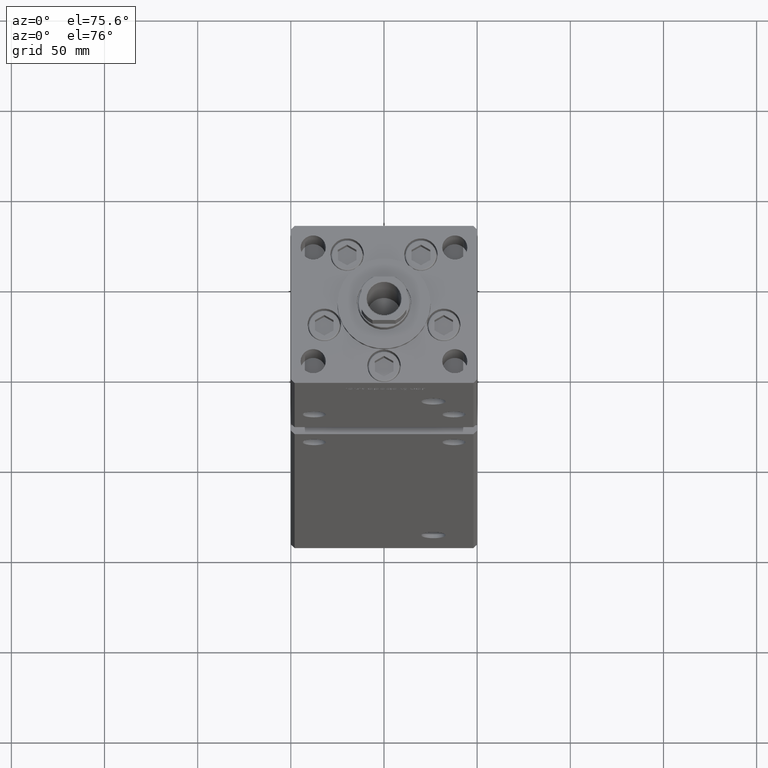
[diagram: clean part render]
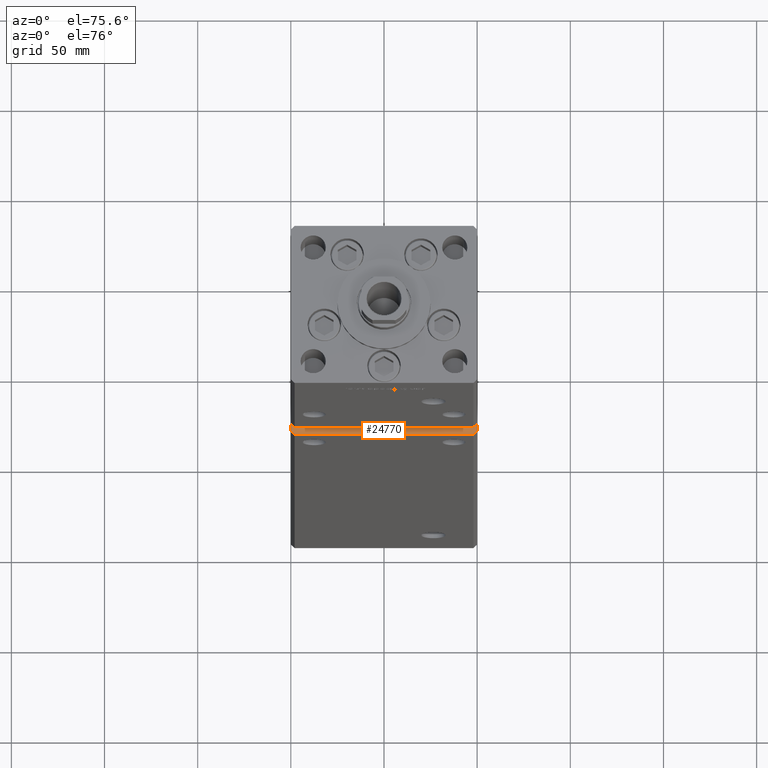
[diagram: same view with one face highlighted and labeled with its STEP entity id]
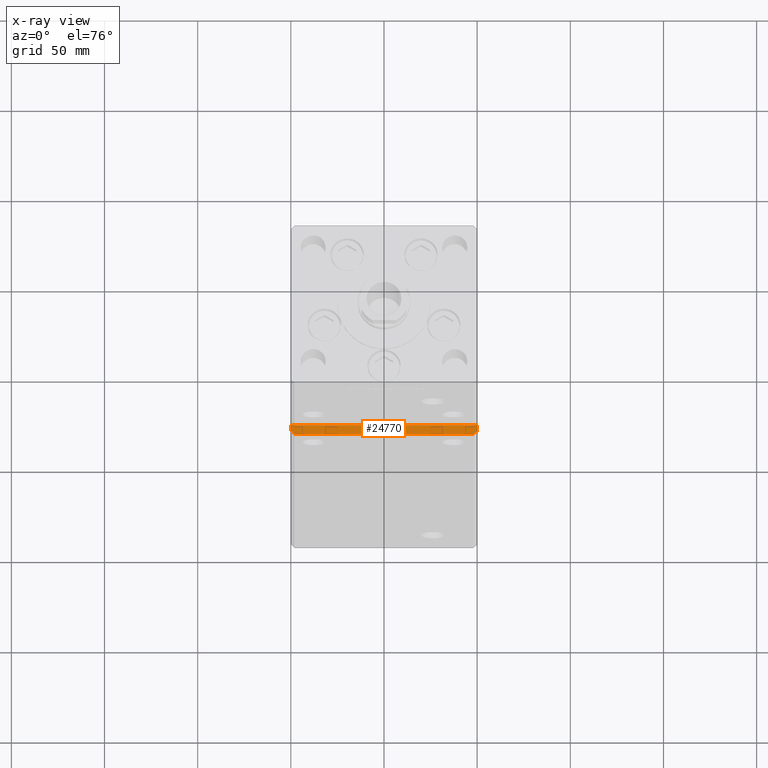
[diagram: x-ray of the same camera — body ghosted, the highlighted face saturated]
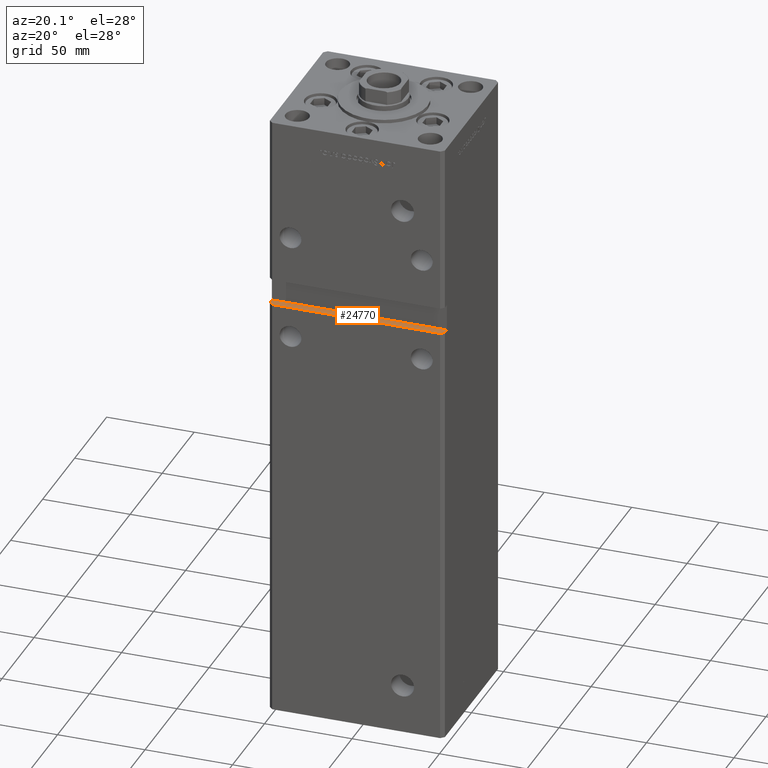
[diagram: same view with one face highlighted and labeled with its STEP entity id]
A machine part, auxiliary view. The second image highlights one B-rep face of the part: STEP entity #24770.
The next image is the same camera in x-ray: the body ghosted, the highlighted face saturated — about 0% of this face is hidden behind the body in this view.
A second angle (auxiliary view) of the same face is appended — the face is thin or edge-on in the first view.
In plain terms, the highlighted planar face has unit normal (0, 0, -1).
Its self-contained STEP definition (entity closure, byte-faithful):
#1216 = CARTESIAN_POINT ( 'NONE',  ( -49.99999999999998579, -41.49999999999999289, 226.9999999999999716 ) ) ;
#2088 = EDGE_LOOP ( 'NONE', ( #24423, #12794, #42733, #37493, #52812, #5229 ) ) ;
#2152 = DIRECTION ( 'NONE',  ( -1.000000000000000000, 0.000000000000000000, -0.000000000000000000 ) ) ;
#2620 = VERTEX_POINT ( 'NONE', #11354 ) ;
#3157 = CARTESIAN_POINT ( 'NONE',  ( 47.99999999999998579, -43.50000000000000000, 226.9999999999999716 ) ) ;
#4847 = EDGE_CURVE ( 'NONE', #45898, #20275, #41851, .T. ) ;
#5229 = ORIENTED_EDGE ( 'NONE', *, *, #51676, .F. ) ;
#9600 = CARTESIAN_POINT ( 'NONE',  ( 49.99999999999999289, -38.50000000000000000, 226.9999999999999716 ) ) ;
#9984 = LINE ( 'NONE', #47046, #21801 ) ;
#10647 = DIRECTION ( 'NONE',  ( -0.000000000000000000, -1.000000000000000000, -0.000000000000000000 ) ) ;
#11205 = VECTOR ( 'NONE', #52964, 1000.000000000000000 ) ;
#11354 = CARTESIAN_POINT ( 'NONE',  ( -47.99999999999998579, -43.50000000000000000, 226.9999999999999716 ) ) ;
#11984 = EDGE_CURVE ( 'NONE', #45898, #36391, #40858, .T. ) ;
#12794 = ORIENTED_EDGE ( 'NONE', *, *, #22140, .T. ) ;
#16285 = EDGE_CURVE ( 'NONE', #2620, #34962, #24308, .T. ) ;
#17494 = FACE_OUTER_BOUND ( 'NONE', #2088, .T. ) ;
#17856 = LINE ( 'NONE', #34486, #50540 ) ;
#19301 = CARTESIAN_POINT ( 'NONE',  ( 49.99999999999998579, -38.49999999999999289, 226.9999999999999716 ) ) ;
#20275 = VERTEX_POINT ( 'NONE', #1216 ) ;
#20276 = CARTESIAN_POINT ( 'NONE',  ( -49.99999999999998579, -43.50000000000000000, 226.9999999999999716 ) ) ;
#21801 = VECTOR ( 'NONE', #26367, 1000.000000000000114 ) ;
#22140 = EDGE_CURVE ( 'NONE', #34962, #37236, #9984, .T. ) ;
#23077 = CARTESIAN_POINT ( 'NONE',  ( 49.99999999999999289, -41.49999999999999289, 226.9999999999999716 ) ) ;
#24308 = LINE ( 'NONE', #20276, #49077 ) ;
#24423 = ORIENTED_EDGE ( 'NONE', *, *, #16285, .T. ) ;
#24770 = ADVANCED_FACE ( 'NONE', ( #17494 ), #38943, .F. ) ;
#26054 = DIRECTION ( 'NONE',  ( 0.000000000000000000, 0.000000000000000000, -1.000000000000000000 ) ) ;
#26367 = DIRECTION ( 'NONE',  ( 0.7071067811865474617, 0.7071067811865474617, 0.000000000000000000 ) ) ;
#33261 = DIRECTION ( 'NONE',  ( -0.000000000000000000, -1.000000000000000000, -0.000000000000000000 ) ) ;
#33813 = CARTESIAN_POINT ( 'NONE',  ( -49.99999999999998579, -38.50000000000000000, 226.9999999999999716 ) ) ;
#34486 = CARTESIAN_POINT ( 'NONE',  ( -49.99999999999998579, -41.49999999999999289, 226.9999999999999716 ) ) ;
#34962 = VERTEX_POINT ( 'NONE', #3157 ) ;
#36391 = VERTEX_POINT ( 'NONE', #19301 ) ;
#37236 = VERTEX_POINT ( 'NONE', #23077 ) ;
#37493 = ORIENTED_EDGE ( 'NONE', *, *, #11984, .F. ) ;
#38588 = LINE ( 'NONE', #9600, #51430 ) ;
#38943 = PLANE ( 'NONE',  #45891 ) ;
#40689 = DIRECTION ( 'NONE',  ( 1.000000000000000000, 0.000000000000000000, 0.000000000000000000 ) ) ;
#40858 = LINE ( 'NONE', #41639, #11205 ) ;
#41639 = CARTESIAN_POINT ( 'NONE',  ( -49.99999999999998579, -38.50000000000000000, 226.9999999999999716 ) ) ;
#41851 = LINE ( 'NONE', #50186, #48844 ) ;
#42553 = DIRECTION ( 'NONE',  ( -0.7071067811865474617, 0.7071067811865474617, 0.000000000000000000 ) ) ;
#42733 = ORIENTED_EDGE ( 'NONE', *, *, #52575, .F. ) ;
#45891 = AXIS2_PLACEMENT_3D ( 'NONE', #51050, #26054, #2152 ) ;
#45898 = VERTEX_POINT ( 'NONE', #33813 ) ;
#47046 = CARTESIAN_POINT ( 'NONE',  ( 49.99999999999998579, -41.49999999999999289, 226.9999999999999716 ) ) ;
#48844 = VECTOR ( 'NONE', #33261, 1000.000000000000000 ) ;
#49077 = VECTOR ( 'NONE', #40689, 1000.000000000000000 ) ;
#50186 = CARTESIAN_POINT ( 'NONE',  ( -49.99999999999998579, -38.50000000000000000, 226.9999999999999716 ) ) ;
#50540 = VECTOR ( 'NONE', #42553, 1000.000000000000114 ) ;
#51050 = CARTESIAN_POINT ( 'NONE',  ( -49.99999999999998579, -38.50000000000000000, 226.9999999999999716 ) ) ;
#51430 = VECTOR ( 'NONE', #10647, 1000.000000000000000 ) ;
#51676 = EDGE_CURVE ( 'NONE', #2620, #20275, #17856, .T. ) ;
#52575 = EDGE_CURVE ( 'NONE', #36391, #37236, #38588, .T. ) ;
#52812 = ORIENTED_EDGE ( 'NONE', *, *, #4847, .T. ) ;
#52964 = DIRECTION ( 'NONE',  ( 1.000000000000000000, 0.000000000000000000, 0.000000000000000000 ) ) ;